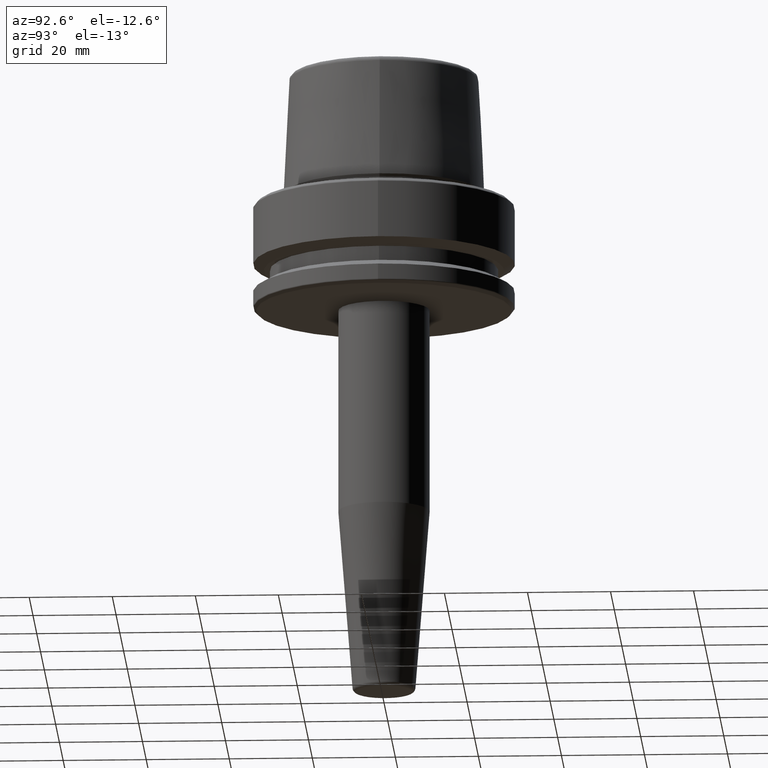
[diagram: clean part render]
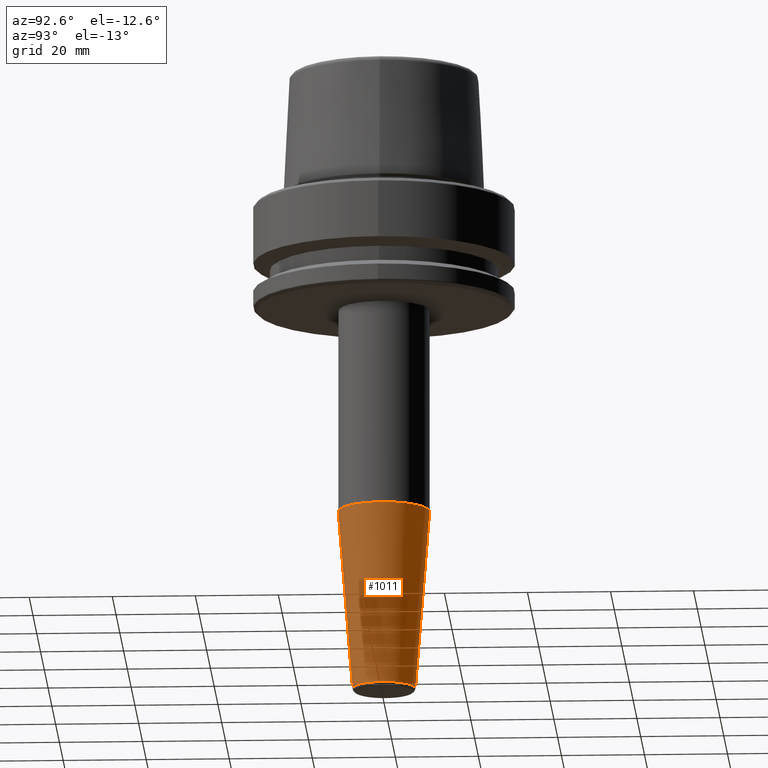
[diagram: same view with one face highlighted and labeled with its STEP entity id]
A machine part, auxiliary view. The second image highlights one B-rep face of the part: STEP entity #1011.
In plain terms, the highlighted conical surface has half-angle 4.5 deg.
Its self-contained STEP definition (entity closure, byte-faithful):
#1 = DIRECTION ( 'NONE',  ( 9.608468044709227600E-018, 0.07845909572783769900, 0.9969173337331285200 ) ) ;
#15 = VERTEX_POINT ( 'NONE', #690 ) ;
#68 = CARTESIAN_POINT ( 'NONE',  ( 9.273670758604453500E-016, -7.572526842074906600, -119.0784590957278200 ) ) ;
#69 = VERTEX_POINT ( 'NONE', #1065 ) ;
#89 = LINE ( 'NONE', #864, #352 ) ;
#93 = AXIS2_PLACEMENT_3D ( 'NONE', #771, #552, #187 ) ;
#139 = VERTEX_POINT ( 'NONE', #68 ) ;
#140 = CIRCLE ( 'NONE', #1217, 10.99999999999998900 ) ;
#187 = DIRECTION ( 'NONE',  ( 0.0000000000000000000, 1.000000000000000000, 0.0000000000000000000 ) ) ;
#219 = EDGE_CURVE ( 'NONE', #15, #139, #739, .T. ) ;
#243 = EDGE_CURVE ( 'NONE', #139, #652, #89, .T. ) ;
#351 = EDGE_LOOP ( 'NONE', ( #476, #865, #886, #1193 ) ) ;
#352 = VECTOR ( 'NONE', #675, 1000.000000000000000 ) ;
#371 = DIRECTION ( 'NONE',  ( 0.0000000000000000000, -5.211262975095120000E-017, 1.000000000000000000 ) ) ;
#475 = CONICAL_SURFACE ( 'NONE', #1000, 10.99999999999999100, 0.07853981633973762500 ) ;
#476 = ORIENTED_EDGE ( 'NONE', *, *, #219, .F. ) ;
#505 = FACE_OUTER_BOUND ( 'NONE', #351, .T. ) ;
#549 = CARTESIAN_POINT ( 'NONE',  ( 0.0000000000000000000, 2.581049096243009500E-015, -75.52828342338449400 ) ) ;
#552 = DIRECTION ( 'NONE',  ( -0.0000000000000000000, 5.211262975095120000E-017, -1.000000000000000000 ) ) ;
#569 = CARTESIAN_POINT ( 'NONE',  ( 0.0000000000000000000, 2.581049096243009500E-015, -75.52828342338449400 ) ) ;
#593 = CARTESIAN_POINT ( 'NONE',  ( 1.347111479062087400E-015, 10.99999999999999300, -75.52828342338449400 ) ) ;
#642 = EDGE_CURVE ( 'NONE', #15, #69, #1245, .T. ) ;
#648 = DIRECTION ( 'NONE',  ( 0.0000000000000000000, 1.000000000000000000, 0.0000000000000000000 ) ) ;
#652 = VERTEX_POINT ( 'NONE', #985 ) ;
#675 = DIRECTION ( 'NONE',  ( 0.0000000000000000000, -0.07845909572783781000, 0.9969173337331285200 ) ) ;
#690 = CARTESIAN_POINT ( 'NONE',  ( 0.0000000000000000000, 7.572526842074917200, -119.0784590957278200 ) ) ;
#739 = CIRCLE ( 'NONE', #93, 7.572526842074911000 ) ;
#771 = CARTESIAN_POINT ( 'NONE',  ( 0.0000000000000000000, 4.850563276644720400E-015, -119.0784590957278200 ) ) ;
#849 = EDGE_CURVE ( 'NONE', #69, #652, #140, .T. ) ;
#864 = CARTESIAN_POINT ( 'NONE',  ( 0.0000000000000000000, -10.99999999999998900, -75.52828342338449400 ) ) ;
#865 = ORIENTED_EDGE ( 'NONE', *, *, #642, .T. ) ;
#886 = ORIENTED_EDGE ( 'NONE', *, *, #849, .T. ) ;
#985 = CARTESIAN_POINT ( 'NONE',  ( 0.0000000000000000000, -10.99999999999998900, -75.52828342338449400 ) ) ;
#991 = VECTOR ( 'NONE', #1, 1000.000000000000000 ) ;
#1000 = AXIS2_PLACEMENT_3D ( 'NONE', #569, #371, #1235 ) ;
#1011 = ADVANCED_FACE ( 'NONE', ( #505 ), #475, .T. ) ;
#1065 = CARTESIAN_POINT ( 'NONE',  ( 1.347111479062087400E-015, 10.99999999999999300, -75.52828342338449400 ) ) ;
#1193 = ORIENTED_EDGE ( 'NONE', *, *, #243, .F. ) ;
#1217 = AXIS2_PLACEMENT_3D ( 'NONE', #549, #1219, #648 ) ;
#1219 = DIRECTION ( 'NONE',  ( -0.0000000000000000000, 5.211262975095120000E-017, -1.000000000000000000 ) ) ;
#1235 = DIRECTION ( 'NONE',  ( 0.0000000000000000000, -1.000000000000000000, 0.0000000000000000000 ) ) ;
#1245 = LINE ( 'NONE', #593, #991 ) ;